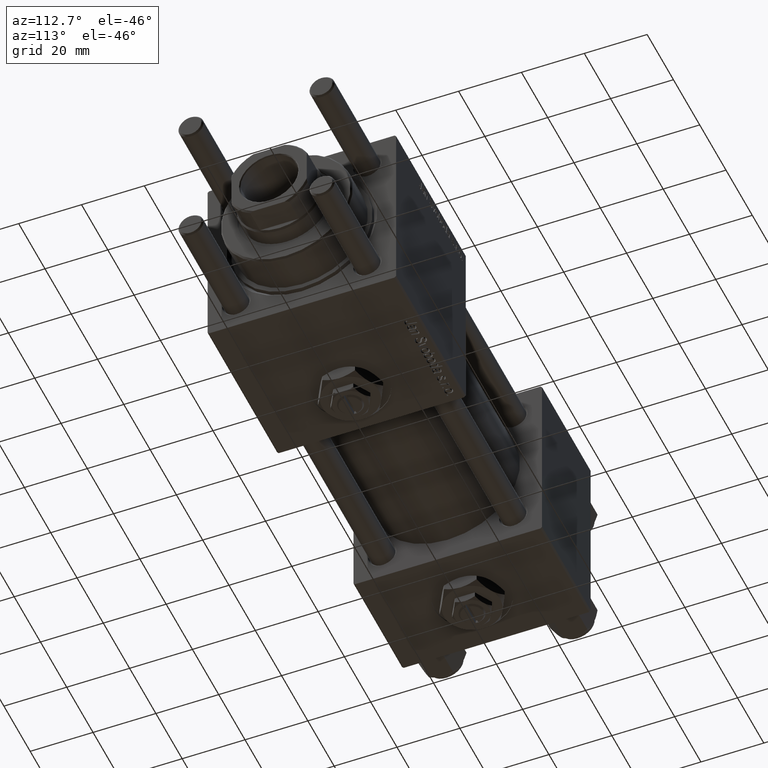
[diagram: clean part render]
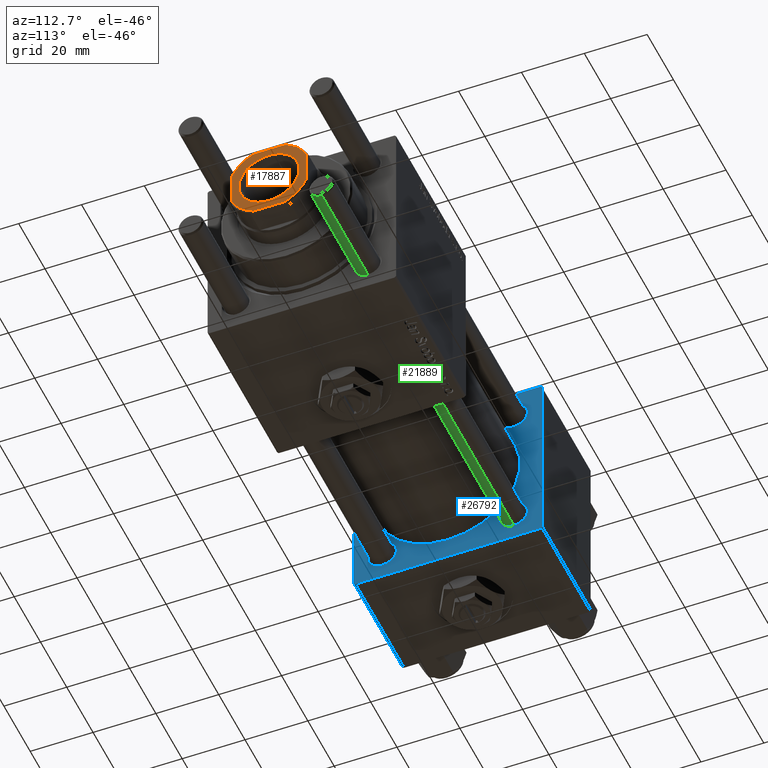
[diagram: same view with three faces highlighted in distinct colors, each labeled with its STEP entity id]
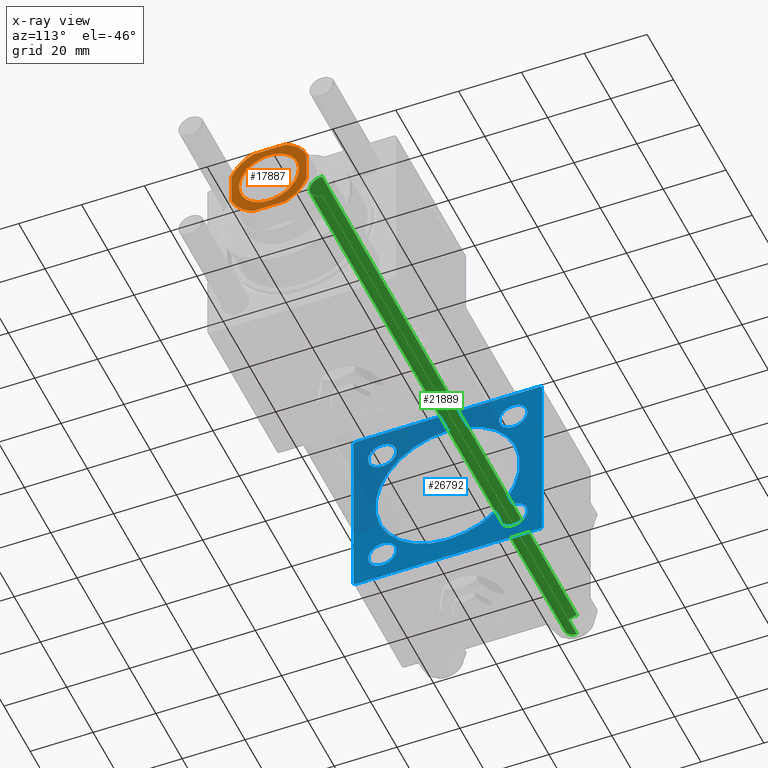
[diagram: x-ray of the same camera — body ghosted, the three highlighted faces saturated]
A machine part, auxiliary view with three faces highlighted in distinct colors.
The next image is the same camera in x-ray (body ghosted, the three faces saturated) — at least one of them is partly hidden behind the body in this view.
Their STEP definitions:

[orange] entity #17887 — the highlighted planar face has unit normal (1, 0, 0).
#131 = CIRCLE ( 'NONE', #32453, 13.00000000000002309 ) ;
#304 = CIRCLE ( 'NONE', #43097, 9.549999999999975842 ) ;
#541 = VECTOR ( 'NONE', #18615, 1000.000000000000000 ) ;
#2282 = DIRECTION ( 'NONE',  ( -2.891205793294678326E-16, 1.000000000000000000, -0.000000000000000000 ) ) ;
#2438 = DIRECTION ( 'NONE',  ( 7.228014483236695816E-17, -1.000000000000000000, 0.000000000000000000 ) ) ;
#2636 = AXIS2_PLACEMENT_3D ( 'NONE', #49928, #53500, #12689 ) ;
#4100 = CARTESIAN_POINT ( 'NONE',  ( -9.549999999999975842, 1.169537693185719205E-15, 136.0000000000000000 ) ) ;
#5224 = CARTESIAN_POINT ( 'NONE',  ( -12.00000000000000000, 11.99999999999999645, 136.0000000000000000 ) ) ;
#5233 = EDGE_CURVE ( 'NONE', #21608, #52743, #57222, .T. ) ;
#5897 = CARTESIAN_POINT ( 'NONE',  ( 5.000000000000042633, 11.99999999999999645, 136.0000000000000000 ) ) ;
#6387 = CARTESIAN_POINT ( 'NONE',  ( -4.999999999999987566, 11.99999999999999645, 136.0000000000000000 ) ) ;
#6406 = VERTEX_POINT ( 'NONE', #5897 ) ;
#7097 = DIRECTION ( 'NONE',  ( 1.000000000000000000, 0.000000000000000000, 0.000000000000000000 ) ) ;
#7121 = PLANE ( 'NONE',  #28450 ) ;
#7127 = DIRECTION ( 'NONE',  ( 1.000000000000000000, 0.000000000000000000, 0.000000000000000000 ) ) ;
#7192 = CARTESIAN_POINT ( 'NONE',  ( 0.000000000000000000, 0.000000000000000000, 136.0000000000000000 ) ) ;
#9504 = ORIENTED_EDGE ( 'NONE', *, *, #34275, .T. ) ;
#10189 = CIRCLE ( 'NONE', #58687, 12.99999999999999289 ) ;
#10900 = CARTESIAN_POINT ( 'NONE',  ( 11.99999999999999645, 11.99999999999999645, 136.0000000000000000 ) ) ;
#11204 = EDGE_CURVE ( 'NONE', #52678, #41967, #45932, .T. ) ;
#11489 = CARTESIAN_POINT ( 'NONE',  ( -12.00000000000000000, -5.000000000000039968, 136.0000000000000000 ) ) ;
#11557 = DIRECTION ( 'NONE',  ( -0.000000000000000000, 0.000000000000000000, 1.000000000000000000 ) ) ;
#11872 = DIRECTION ( 'NONE',  ( -0.000000000000000000, 0.000000000000000000, 1.000000000000000000 ) ) ;
#12689 = DIRECTION ( 'NONE',  ( 1.000000000000000000, 0.000000000000000000, 0.000000000000000000 ) ) ;
#14632 = CARTESIAN_POINT ( 'NONE',  ( -11.99999999999999822, -12.00000000000000355, 136.0000000000000000 ) ) ;
#15561 = ORIENTED_EDGE ( 'NONE', *, *, #55832, .T. ) ;
#16313 = CARTESIAN_POINT ( 'NONE',  ( 0.000000000000000000, 0.000000000000000000, 136.0000000000000000 ) ) ;
#16401 = DIRECTION ( 'NONE',  ( -0.000000000000000000, 0.000000000000000000, 1.000000000000000000 ) ) ;
#17273 = ORIENTED_EDGE ( 'NONE', *, *, #54525, .T. ) ;
#17887 = ADVANCED_FACE ( 'NONE', ( #29742, #47932 ), #7121, .T. ) ;
#18615 = DIRECTION ( 'NONE',  ( -1.000000000000000000, -0.000000000000000000, -0.000000000000000000 ) ) ;
#19973 = VECTOR ( 'NONE', #2282, 1000.000000000000000 ) ;
#20020 = DIRECTION ( 'NONE',  ( 1.000000000000000000, 0.000000000000000000, 0.000000000000000000 ) ) ;
#20021 = ORIENTED_EDGE ( 'NONE', *, *, #23658, .T. ) ;
#20297 = CARTESIAN_POINT ( 'NONE',  ( -12.00000000000000000, 11.99999999999999645, 136.0000000000000000 ) ) ;
#21608 = VERTEX_POINT ( 'NONE', #54338 ) ;
#22316 = CARTESIAN_POINT ( 'NONE',  ( 0.000000000000000000, 0.000000000000000000, 136.0000000000000000 ) ) ;
#22503 = VERTEX_POINT ( 'NONE', #42859 ) ;
#23658 = EDGE_CURVE ( 'NONE', #22503, #52157, #28294, .T. ) ;
#24013 = EDGE_LOOP ( 'NONE', ( #20021, #50150 ) ) ;
#24393 = DIRECTION ( 'NONE',  ( 1.000000000000000000, 0.000000000000000000, 0.000000000000000000 ) ) ;
#24904 = CARTESIAN_POINT ( 'NONE',  ( -5.000000000000031086, -12.00000000000000355, 136.0000000000000000 ) ) ;
#25277 = CARTESIAN_POINT ( 'NONE',  ( 0.000000000000000000, 0.000000000000000000, 136.0000000000000000 ) ) ;
#26101 = DIRECTION ( 'NONE',  ( 1.000000000000000000, 0.000000000000000000, 0.000000000000000000 ) ) ;
#26693 = DIRECTION ( 'NONE',  ( 0.000000000000000000, -0.000000000000000000, -1.000000000000000000 ) ) ;
#27720 = VERTEX_POINT ( 'NONE', #49414 ) ;
#28294 = CIRCLE ( 'NONE', #2636, 9.549999999999975842 ) ;
#28450 = AXIS2_PLACEMENT_3D ( 'NONE', #25277, #11872, #43458 ) ;
#29048 = CIRCLE ( 'NONE', #31887, 13.00000000000001243 ) ;
#29742 = FACE_BOUND ( 'NONE', #24013, .T. ) ;
#29856 = EDGE_CURVE ( 'NONE', #33203, #27720, #54122, .T. ) ;
#31887 = AXIS2_PLACEMENT_3D ( 'NONE', #16313, #11557, #7097 ) ;
#32311 = LINE ( 'NONE', #5224, #541 ) ;
#32453 = AXIS2_PLACEMENT_3D ( 'NONE', #7192, #16401, #20020 ) ;
#32675 = ORIENTED_EDGE ( 'NONE', *, *, #5233, .T. ) ;
#32791 = DIRECTION ( 'NONE',  ( 1.000000000000000000, 0.000000000000000000, 0.000000000000000000 ) ) ;
#33043 = ORIENTED_EDGE ( 'NONE', *, *, #57268, .T. ) ;
#33203 = VERTEX_POINT ( 'NONE', #56403 ) ;
#34147 = ORIENTED_EDGE ( 'NONE', *, *, #29856, .T. ) ;
#34275 = EDGE_CURVE ( 'NONE', #41967, #33203, #131, .T. ) ;
#34682 = CIRCLE ( 'NONE', #38522, 13.00000000000001421 ) ;
#36791 = VECTOR ( 'NONE', #32791, 1000.000000000000000 ) ;
#38522 = AXIS2_PLACEMENT_3D ( 'NONE', #22316, #41993, #24393 ) ;
#41967 = VERTEX_POINT ( 'NONE', #46032 ) ;
#41993 = DIRECTION ( 'NONE',  ( -0.000000000000000000, 0.000000000000000000, 1.000000000000000000 ) ) ;
#42859 = CARTESIAN_POINT ( 'NONE',  ( 9.549999999999975842, 0.000000000000000000, 136.0000000000000000 ) ) ;
#43097 = AXIS2_PLACEMENT_3D ( 'NONE', #49942, #26693, #26101 ) ;
#43458 = DIRECTION ( 'NONE',  ( 1.000000000000000000, 0.000000000000000000, 0.000000000000000000 ) ) ;
#43952 = EDGE_CURVE ( 'NONE', #52157, #22503, #304, .T. ) ;
#44044 = CARTESIAN_POINT ( 'NONE',  ( 0.000000000000000000, 0.000000000000000000, 136.0000000000000000 ) ) ;
#45379 = ORIENTED_EDGE ( 'NONE', *, *, #11204, .T. ) ;
#45932 = LINE ( 'NONE', #14632, #36791 ) ;
#46032 = CARTESIAN_POINT ( 'NONE',  ( 5.000000000000053291, -12.00000000000000355, 136.0000000000000000 ) ) ;
#46378 = EDGE_LOOP ( 'NONE', ( #34147, #55102, #15561, #33043, #32675, #17273, #45379, #9504 ) ) ;
#47097 = VERTEX_POINT ( 'NONE', #6387 ) ;
#47651 = DIRECTION ( 'NONE',  ( -0.000000000000000000, 0.000000000000000000, 1.000000000000000000 ) ) ;
#47932 = FACE_OUTER_BOUND ( 'NONE', #46378, .T. ) ;
#49414 = CARTESIAN_POINT ( 'NONE',  ( 11.99999999999999822, 5.000000000000037303, 136.0000000000000000 ) ) ;
#49928 = CARTESIAN_POINT ( 'NONE',  ( 0.000000000000000000, 0.000000000000000000, 136.0000000000000000 ) ) ;
#49942 = CARTESIAN_POINT ( 'NONE',  ( 0.000000000000000000, 0.000000000000000000, 136.0000000000000000 ) ) ;
#50150 = ORIENTED_EDGE ( 'NONE', *, *, #43952, .T. ) ;
#50268 = EDGE_CURVE ( 'NONE', #27720, #6406, #29048, .T. ) ;
#51988 = VECTOR ( 'NONE', #2438, 1000.000000000000000 ) ;
#52157 = VERTEX_POINT ( 'NONE', #4100 ) ;
#52678 = VERTEX_POINT ( 'NONE', #24904 ) ;
#52743 = VERTEX_POINT ( 'NONE', #11489 ) ;
#53500 = DIRECTION ( 'NONE',  ( 0.000000000000000000, -0.000000000000000000, -1.000000000000000000 ) ) ;
#54122 = LINE ( 'NONE', #10900, #19973 ) ;
#54338 = CARTESIAN_POINT ( 'NONE',  ( -12.00000000000000000, 4.999999999999979572, 136.0000000000000000 ) ) ;
#54525 = EDGE_CURVE ( 'NONE', #52743, #52678, #34682, .T. ) ;
#55102 = ORIENTED_EDGE ( 'NONE', *, *, #50268, .T. ) ;
#55832 = EDGE_CURVE ( 'NONE', #6406, #47097, #32311, .T. ) ;
#56403 = CARTESIAN_POINT ( 'NONE',  ( 12.00000000000000178, -5.000000000000056843, 136.0000000000000000 ) ) ;
#57222 = LINE ( 'NONE', #20297, #51988 ) ;
#57268 = EDGE_CURVE ( 'NONE', #47097, #21608, #10189, .T. ) ;
#58687 = AXIS2_PLACEMENT_3D ( 'NONE', #44044, #47651, #7127 ) ;

[blue] entity #26792 — the highlighted planar face has unit normal (-1, 0, 0).
#222 = ORIENTED_EDGE ( 'NONE', *, *, #44537, .F. ) ;
#408 = EDGE_CURVE ( 'NONE', #28565, #27055, #43979, .T. ) ;
#692 = CARTESIAN_POINT ( 'NONE',  ( 37.00000000000000000, 20.84999999999999787, -25.34999999999999076 ) ) ;
#858 = EDGE_CURVE ( 'NONE', #12422, #48890, #43309, .T. ) ;
#973 = VERTEX_POINT ( 'NONE', #40305 ) ;
#1001 = EDGE_CURVE ( 'NONE', #14592, #43388, #13794, .T. ) ;
#1235 = ORIENTED_EDGE ( 'NONE', *, *, #33854, .T. ) ;
#1275 = DIRECTION ( 'NONE',  ( 0.000000000000000000, 0.000000000000000000, 1.000000000000000000 ) ) ;
#1366 = ORIENTED_EDGE ( 'NONE', *, *, #1001, .F. ) ;
#1434 = CARTESIAN_POINT ( 'NONE',  ( 37.00000000000000000, 20.84999999999999787, 16.35000000000001208 ) ) ;
#1598 = DIRECTION ( 'NONE',  ( 1.000000000000000000, -0.000000000000000000, 0.000000000000000000 ) ) ;
#1777 = CARTESIAN_POINT ( 'NONE',  ( 37.00000000000000000, -20.84999999999999076, -25.34999999999999432 ) ) ;
#2000 = DIRECTION ( 'NONE',  ( 0.000000000000000000, -1.000000000000000000, -1.156482317317871725E-16 ) ) ;
#2104 = ORIENTED_EDGE ( 'NONE', *, *, #408, .T. ) ;
#2295 = DIRECTION ( 'NONE',  ( -1.000000000000000000, 0.000000000000000000, -0.000000000000000000 ) ) ;
#4001 = CARTESIAN_POINT ( 'NONE',  ( 37.00000000000000000, 20.84999999999999787, 20.85000000000000142 ) ) ;
#4348 = AXIS2_PLACEMENT_3D ( 'NONE', #32735, #13999, #50932 ) ;
#4420 = LINE ( 'NONE', #17197, #52098 ) ;
#4422 = EDGE_LOOP ( 'NONE', ( #1235, #7569 ) ) ;
#4511 = CARTESIAN_POINT ( 'NONE',  ( 37.00000000000000000, 2.146024240737012665E-16, -23.00000000000000000 ) ) ;
#4545 = EDGE_CURVE ( 'NONE', #43393, #50440, #27014, .T. ) ;
#5265 = AXIS2_PLACEMENT_3D ( 'NONE', #34656, #12031, #40014 ) ;
#6191 = CARTESIAN_POINT ( 'NONE',  ( 37.00000000000000000, -2.602085213965210642E-15, 23.00000000000000000 ) ) ;
#6259 = FACE_BOUND ( 'NONE', #12029, .T. ) ;
#6912 = ORIENTED_EDGE ( 'NONE', *, *, #54432, .T. ) ;
#7422 = DIRECTION ( 'NONE',  ( -0.000000000000000000, 0.000000000000000000, 1.000000000000000000 ) ) ;
#7569 = ORIENTED_EDGE ( 'NONE', *, *, #21677, .T. ) ;
#8162 = VECTOR ( 'NONE', #35648, 1000.000000000000114 ) ;
#8213 = DIRECTION ( 'NONE',  ( -0.000000000000000000, 0.7071067811865574537, 0.7071067811865376918 ) ) ;
#8314 = CARTESIAN_POINT ( 'NONE',  ( 37.00000000000000000, 29.99999999999999289, 30.00000000000000000 ) ) ;
#8618 = LINE ( 'NONE', #8314, #18336 ) ;
#8629 = DIRECTION ( 'NONE',  ( -0.000000000000000000, -0.7071067811865474617, -0.7071067811865474617 ) ) ;
#9099 = ORIENTED_EDGE ( 'NONE', *, *, #44603, .T. ) ;
#11349 = ORIENTED_EDGE ( 'NONE', *, *, #858, .T. ) ;
#11374 = ORIENTED_EDGE ( 'NONE', *, *, #4545, .T. ) ;
#11978 = DIRECTION ( 'NONE',  ( 0.000000000000000000, 0.000000000000000000, 1.000000000000000000 ) ) ;
#12029 = EDGE_LOOP ( 'NONE', ( #1366, #38230 ) ) ;
#12031 = DIRECTION ( 'NONE',  ( -1.000000000000000000, 0.000000000000000000, -0.000000000000000000 ) ) ;
#12422 = VERTEX_POINT ( 'NONE', #692 ) ;
#12795 = VECTOR ( 'NONE', #8213, 999.9999999999998863 ) ;
#13509 = EDGE_LOOP ( 'NONE', ( #9099, #31145 ) ) ;
#13693 = EDGE_CURVE ( 'NONE', #28565, #50716, #4420, .T. ) ;
#13724 = CARTESIAN_POINT ( 'NONE',  ( 37.00000000000000000, -20.84999999999999076, -16.35000000000001208 ) ) ;
#13794 = CIRCLE ( 'NONE', #29938, 23.00000000000000000 ) ;
#13999 = DIRECTION ( 'NONE',  ( -1.000000000000000000, 0.000000000000000000, -0.000000000000000000 ) ) ;
#14592 = VERTEX_POINT ( 'NONE', #6191 ) ;
#14598 = FACE_BOUND ( 'NONE', #13509, .T. ) ;
#14835 = EDGE_CURVE ( 'NONE', #21248, #50716, #22799, .T. ) ;
#14879 = DIRECTION ( 'NONE',  ( 0.000000000000000000, 0.000000000000000000, 1.000000000000000000 ) ) ;
#14971 = DIRECTION ( 'NONE',  ( 0.000000000000000000, 0.000000000000000000, 1.000000000000000000 ) ) ;
#15029 = VERTEX_POINT ( 'NONE', #25803 ) ;
#15971 = EDGE_LOOP ( 'NONE', ( #11349, #6912 ) ) ;
#16597 = CARTESIAN_POINT ( 'NONE',  ( 37.00000000000000000, -20.84999999999999076, 20.85000000000000497 ) ) ;
#16778 = EDGE_LOOP ( 'NONE', ( #44121, #36495 ) ) ;
#16888 = DIRECTION ( 'NONE',  ( 0.000000000000000000, 0.000000000000000000, 1.000000000000000000 ) ) ;
#17197 = CARTESIAN_POINT ( 'NONE',  ( 37.00000000000000000, 29.99999999999999289, -30.00000000000000000 ) ) ;
#17208 = CIRCLE ( 'NONE', #43853, 4.499999999999990230 ) ;
#17229 = CARTESIAN_POINT ( 'NONE',  ( 37.00000000000000000, -20.84999999999999076, 16.35000000000001208 ) ) ;
#17442 = CARTESIAN_POINT ( 'NONE',  ( 37.00000000000000000, -30.00000000000000000, 29.49999999999999289 ) ) ;
#18336 = VECTOR ( 'NONE', #54784, 1000.000000000000000 ) ;
#18339 = DIRECTION ( 'NONE',  ( 0.000000000000000000, 0.7071067811865474617, -0.7071067811865474617 ) ) ;
#18435 = CARTESIAN_POINT ( 'NONE',  ( 37.00000000000000000, 29.49999999999997868, -30.00000000000000000 ) ) ;
#19800 = VERTEX_POINT ( 'NONE', #17229 ) ;
#20429 = CARTESIAN_POINT ( 'NONE',  ( 37.00000000000000000, 29.99999999999999289, 30.00000000000000000 ) ) ;
#20939 = EDGE_CURVE ( 'NONE', #48816, #973, #42795, .T. ) ;
#21248 = VERTEX_POINT ( 'NONE', #38140 ) ;
#21597 = VERTEX_POINT ( 'NONE', #31987 ) ;
#21677 = EDGE_CURVE ( 'NONE', #21597, #19800, #35186, .T. ) ;
#22242 = EDGE_CURVE ( 'NONE', #36181, #21248, #35127, .T. ) ;
#22253 = DIRECTION ( 'NONE',  ( 0.000000000000000000, -1.000000000000000000, -1.156482317317871725E-16 ) ) ;
#22337 = AXIS2_PLACEMENT_3D ( 'NONE', #23885, #42069, #1275 ) ;
#22799 = LINE ( 'NONE', #30838, #41693 ) ;
#23816 = DIRECTION ( 'NONE',  ( 1.000000000000000000, -0.000000000000000000, 0.000000000000000000 ) ) ;
#23885 = CARTESIAN_POINT ( 'NONE',  ( 37.00000000000000000, 20.84999999999999787, -20.85000000000000142 ) ) ;
#24196 = CARTESIAN_POINT ( 'NONE',  ( 37.00000000000000000, -2.602085213965210642E-15, 0.000000000000000000 ) ) ;
#24348 = CARTESIAN_POINT ( 'NONE',  ( 37.00000000000000000, 29.99999999999999289, -29.50000000000000000 ) ) ;
#24614 = CARTESIAN_POINT ( 'NONE',  ( 37.00000000000000000, -20.84999999999999076, -20.85000000000000497 ) ) ;
#25803 = CARTESIAN_POINT ( 'NONE',  ( 37.00000000000000000, -29.49999999999998579, 29.99999999999999289 ) ) ;
#25840 = ORIENTED_EDGE ( 'NONE', *, *, #14835, .T. ) ;
#25951 = CARTESIAN_POINT ( 'NONE',  ( 37.00000000000000000, 20.84999999999999787, 20.85000000000000142 ) ) ;
#26218 = VECTOR ( 'NONE', #2000, 1000.000000000000000 ) ;
#26792 = ADVANCED_FACE ( 'NONE', ( #14598, #46775, #32756, #51249, #6259, #35098 ), #48228, .F. ) ;
#26917 = AXIS2_PLACEMENT_3D ( 'NONE', #24614, #2295, #46969 ) ;
#27014 = LINE ( 'NONE', #49376, #8162 ) ;
#27043 = ORIENTED_EDGE ( 'NONE', *, *, #33590, .T. ) ;
#27055 = VERTEX_POINT ( 'NONE', #24348 ) ;
#27976 = CARTESIAN_POINT ( 'NONE',  ( 37.00000000000000000, -30.00000000000000000, 29.49999999999999289 ) ) ;
#28286 = CARTESIAN_POINT ( 'NONE',  ( 37.00000000000000000, -2.602085213965210642E-15, 0.000000000000000000 ) ) ;
#28471 = AXIS2_PLACEMENT_3D ( 'NONE', #4001, #49579, #31684 ) ;
#28565 = VERTEX_POINT ( 'NONE', #18435 ) ;
#29294 = EDGE_CURVE ( 'NONE', #973, #48816, #54145, .T. ) ;
#29938 = AXIS2_PLACEMENT_3D ( 'NONE', #24196, #1598, #14971 ) ;
#30023 = ORIENTED_EDGE ( 'NONE', *, *, #22242, .T. ) ;
#30045 = CARTESIAN_POINT ( 'NONE',  ( 37.00000000000000000, 0.000000000000000000, 0.000000000000000000 ) ) ;
#30139 = DIRECTION ( 'NONE',  ( -1.000000000000000000, 0.000000000000000000, -0.000000000000000000 ) ) ;
#30838 = CARTESIAN_POINT ( 'NONE',  ( 37.00000000000000000, -29.50000000000001066, -30.00000000000000711 ) ) ;
#31145 = ORIENTED_EDGE ( 'NONE', *, *, #51966, .T. ) ;
#31684 = DIRECTION ( 'NONE',  ( 0.000000000000000000, 0.000000000000000000, 1.000000000000000000 ) ) ;
#31894 = CARTESIAN_POINT ( 'NONE',  ( 37.00000000000000000, 29.99999999999999289, 29.50000000000000000 ) ) ;
#31987 = CARTESIAN_POINT ( 'NONE',  ( 37.00000000000000000, -20.84999999999999076, 25.34999999999999432 ) ) ;
#32316 = AXIS2_PLACEMENT_3D ( 'NONE', #25951, #36076, #44418 ) ;
#32735 = CARTESIAN_POINT ( 'NONE',  ( 37.00000000000000000, -20.84999999999999076, -20.85000000000000497 ) ) ;
#32756 = FACE_BOUND ( 'NONE', #4422, .T. ) ;
#33590 = EDGE_CURVE ( 'NONE', #15029, #36181, #49741, .T. ) ;
#33854 = EDGE_CURVE ( 'NONE', #19800, #21597, #17208, .T. ) ;
#34327 = CARTESIAN_POINT ( 'NONE',  ( 37.00000000000000000, -20.84999999999999076, 20.85000000000000497 ) ) ;
#34656 = CARTESIAN_POINT ( 'NONE',  ( 37.00000000000000000, 20.84999999999999787, -20.85000000000000142 ) ) ;
#35098 = FACE_OUTER_BOUND ( 'NONE', #56119, .T. ) ;
#35127 = LINE ( 'NONE', #49739, #50588 ) ;
#35186 = CIRCLE ( 'NONE', #41907, 4.499999999999990230 ) ;
#35316 = CARTESIAN_POINT ( 'NONE',  ( 37.00000000000000000, 29.99999999999999289, -29.50000000000000000 ) ) ;
#35648 = DIRECTION ( 'NONE',  ( 0.000000000000000000, -0.7071067811865474617, 0.7071067811865474617 ) ) ;
#36076 = DIRECTION ( 'NONE',  ( -1.000000000000000000, 0.000000000000000000, -0.000000000000000000 ) ) ;
#36181 = VERTEX_POINT ( 'NONE', #17442 ) ;
#36495 = ORIENTED_EDGE ( 'NONE', *, *, #29294, .T. ) ;
#38038 = CARTESIAN_POINT ( 'NONE',  ( 37.00000000000000000, 20.84999999999999787, -16.35000000000001208 ) ) ;
#38140 = CARTESIAN_POINT ( 'NONE',  ( 37.00000000000000000, -30.00000000000000000, -29.50000000000001776 ) ) ;
#38230 = ORIENTED_EDGE ( 'NONE', *, *, #38351, .F. ) ;
#38351 = EDGE_CURVE ( 'NONE', #43388, #14592, #42931, .T. ) ;
#38696 = DIRECTION ( 'NONE',  ( -1.000000000000000000, 0.000000000000000000, -0.000000000000000000 ) ) ;
#39461 = CARTESIAN_POINT ( 'NONE',  ( 37.00000000000000000, 29.49999999999999289, 30.00000000000000000 ) ) ;
#39579 = VERTEX_POINT ( 'NONE', #1777 ) ;
#40014 = DIRECTION ( 'NONE',  ( 0.000000000000000000, 0.000000000000000000, 1.000000000000000000 ) ) ;
#40305 = CARTESIAN_POINT ( 'NONE',  ( 37.00000000000000000, 20.84999999999999787, 25.34999999999999076 ) ) ;
#41693 = VECTOR ( 'NONE', #18339, 1000.000000000000114 ) ;
#41907 = AXIS2_PLACEMENT_3D ( 'NONE', #34327, #30139, #11978 ) ;
#42069 = DIRECTION ( 'NONE',  ( -1.000000000000000000, 0.000000000000000000, -0.000000000000000000 ) ) ;
#42243 = ORIENTED_EDGE ( 'NONE', *, *, #52705, .T. ) ;
#42678 = VERTEX_POINT ( 'NONE', #13724 ) ;
#42795 = CIRCLE ( 'NONE', #32316, 4.499999999999990230 ) ;
#42931 = CIRCLE ( 'NONE', #50553, 23.00000000000000000 ) ;
#43309 = CIRCLE ( 'NONE', #5265, 4.499999999999990230 ) ;
#43388 = VERTEX_POINT ( 'NONE', #4511 ) ;
#43393 = VERTEX_POINT ( 'NONE', #31894 ) ;
#43853 = AXIS2_PLACEMENT_3D ( 'NONE', #16597, #52955, #16888 ) ;
#43979 = LINE ( 'NONE', #35316, #12795 ) ;
#44121 = ORIENTED_EDGE ( 'NONE', *, *, #20939, .T. ) ;
#44418 = DIRECTION ( 'NONE',  ( 0.000000000000000000, 0.000000000000000000, 1.000000000000000000 ) ) ;
#44537 = EDGE_CURVE ( 'NONE', #43393, #27055, #8618, .T. ) ;
#44603 = EDGE_CURVE ( 'NONE', #39579, #42678, #45947, .T. ) ;
#45947 = CIRCLE ( 'NONE', #26917, 4.499999999999990230 ) ;
#46626 = ORIENTED_EDGE ( 'NONE', *, *, #13693, .F. ) ;
#46775 = FACE_BOUND ( 'NONE', #15971, .T. ) ;
#46969 = DIRECTION ( 'NONE',  ( 0.000000000000000000, 0.000000000000000000, 1.000000000000000000 ) ) ;
#48228 = PLANE ( 'NONE',  #48365 ) ;
#48365 = AXIS2_PLACEMENT_3D ( 'NONE', #30045, #38696, #7422 ) ;
#48816 = VERTEX_POINT ( 'NONE', #1434 ) ;
#48890 = VERTEX_POINT ( 'NONE', #38038 ) ;
#49026 = CIRCLE ( 'NONE', #4348, 4.499999999999990230 ) ;
#49376 = CARTESIAN_POINT ( 'NONE',  ( 37.00000000000000000, 29.49999999999999289, 30.00000000000000000 ) ) ;
#49579 = DIRECTION ( 'NONE',  ( -1.000000000000000000, 0.000000000000000000, -0.000000000000000000 ) ) ;
#49739 = CARTESIAN_POINT ( 'NONE',  ( 37.00000000000000000, -30.00000000000000000, 29.99999999999999289 ) ) ;
#49741 = LINE ( 'NONE', #27976, #50511 ) ;
#50440 = VERTEX_POINT ( 'NONE', #39461 ) ;
#50511 = VECTOR ( 'NONE', #8629, 1000.000000000000114 ) ;
#50553 = AXIS2_PLACEMENT_3D ( 'NONE', #28286, #23816, #14879 ) ;
#50588 = VECTOR ( 'NONE', #57771, 1000.000000000000000 ) ;
#50716 = VERTEX_POINT ( 'NONE', #51367 ) ;
#50932 = DIRECTION ( 'NONE',  ( 0.000000000000000000, 0.000000000000000000, 1.000000000000000000 ) ) ;
#51249 = FACE_BOUND ( 'NONE', #16778, .T. ) ;
#51367 = CARTESIAN_POINT ( 'NONE',  ( 37.00000000000000000, -29.50000000000000000, -30.00000000000000711 ) ) ;
#51966 = EDGE_CURVE ( 'NONE', #42678, #39579, #49026, .T. ) ;
#52098 = VECTOR ( 'NONE', #22253, 1000.000000000000000 ) ;
#52597 = LINE ( 'NONE', #20429, #26218 ) ;
#52705 = EDGE_CURVE ( 'NONE', #50440, #15029, #52597, .T. ) ;
#52955 = DIRECTION ( 'NONE',  ( -1.000000000000000000, 0.000000000000000000, -0.000000000000000000 ) ) ;
#54145 = CIRCLE ( 'NONE', #28471, 4.499999999999990230 ) ;
#54432 = EDGE_CURVE ( 'NONE', #48890, #12422, #58498, .T. ) ;
#54784 = DIRECTION ( 'NONE',  ( 0.000000000000000000, 0.000000000000000000, -1.000000000000000000 ) ) ;
#56119 = EDGE_LOOP ( 'NONE', ( #46626, #2104, #222, #11374, #42243, #27043, #30023, #25840 ) ) ;
#57771 = DIRECTION ( 'NONE',  ( 0.000000000000000000, 0.000000000000000000, -1.000000000000000000 ) ) ;
#58498 = CIRCLE ( 'NONE', #22337, 4.499999999999990230 ) ;

[green] entity #21889 — the highlighted cylindrical surface (edge-blend (fillet) strip) has radius 4 mm, axis along (-1, -0, 0).
#5150 = ORIENTED_EDGE ( 'NONE', *, *, #51970, .T. ) ;
#7346 = CARTESIAN_POINT ( 'NONE',  ( 0.000000000000000000, 0.000000000000000000, 0.5000000000000004441 ) ) ;
#7651 = AXIS2_PLACEMENT_3D ( 'NONE', #40254, #21784, #22668 ) ;
#9821 = DIRECTION ( 'NONE',  ( 0.000000000000000000, 0.000000000000000000, -1.000000000000000000 ) ) ;
#10214 = AXIS2_PLACEMENT_3D ( 'NONE', #7346, #43688, #57380 ) ;
#10257 = VERTEX_POINT ( 'NONE', #23634 ) ;
#10690 = CARTESIAN_POINT ( 'NONE',  ( -4.000000000000000000, 0.000000000000000000, 195.0000000000000000 ) ) ;
#12813 = EDGE_CURVE ( 'NONE', #10257, #45741, #55982, .T. ) ;
#13873 = EDGE_CURVE ( 'NONE', #45741, #18773, #36871, .T. ) ;
#14255 = VERTEX_POINT ( 'NONE', #39281 ) ;
#14467 = DIRECTION ( 'NONE',  ( -0.000000000000000000, -0.000000000000000000, -1.000000000000000000 ) ) ;
#15766 = ORIENTED_EDGE ( 'NONE', *, *, #12813, .T. ) ;
#16899 = ORIENTED_EDGE ( 'NONE', *, *, #13873, .T. ) ;
#18773 = VERTEX_POINT ( 'NONE', #47438 ) ;
#19012 = ORIENTED_EDGE ( 'NONE', *, *, #23721, .F. ) ;
#19577 = CIRCLE ( 'NONE', #24326, 4.000000000000000000 ) ;
#21784 = DIRECTION ( 'NONE',  ( -0.000000000000000000, -0.000000000000000000, -1.000000000000000000 ) ) ;
#21889 = ADVANCED_FACE ( 'NONE', ( #57836 ), #44731, .T. ) ;
#22668 = DIRECTION ( 'NONE',  ( -1.000000000000000000, 0.000000000000000000, 0.000000000000000000 ) ) ;
#23634 = CARTESIAN_POINT ( 'NONE',  ( -4.000000000000000000, 0.000000000000000000, 194.5000000000000568 ) ) ;
#23721 = EDGE_CURVE ( 'NONE', #14255, #18773, #46344, .T. ) ;
#24326 = AXIS2_PLACEMENT_3D ( 'NONE', #55106, #9821, #50648 ) ;
#26241 = EDGE_LOOP ( 'NONE', ( #19012, #5150, #15766, #16899 ) ) ;
#36871 = CIRCLE ( 'NONE', #10214, 4.000000000000000000 ) ;
#37821 = VECTOR ( 'NONE', #14467, 1000.000000000000000 ) ;
#39281 = CARTESIAN_POINT ( 'NONE',  ( 4.000000000000000000, 4.898587196589412829E-16, 194.5000000000000568 ) ) ;
#40254 = CARTESIAN_POINT ( 'NONE',  ( 0.000000000000000000, 0.000000000000000000, 195.0000000000000000 ) ) ;
#43688 = DIRECTION ( 'NONE',  ( -0.000000000000000000, -0.000000000000000000, 1.000000000000000000 ) ) ;
#44731 = CYLINDRICAL_SURFACE ( 'NONE', #7651, 4.000000000000000000 ) ;
#45741 = VERTEX_POINT ( 'NONE', #54895 ) ;
#46344 = LINE ( 'NONE', #54985, #37821 ) ;
#46404 = VECTOR ( 'NONE', #50346, 1000.000000000000000 ) ;
#47438 = CARTESIAN_POINT ( 'NONE',  ( 4.000000000000000000, 4.898587196589412829E-16, 0.5000000000000004441 ) ) ;
#50346 = DIRECTION ( 'NONE',  ( -0.000000000000000000, -0.000000000000000000, -1.000000000000000000 ) ) ;
#50648 = DIRECTION ( 'NONE',  ( 1.000000000000000000, 0.000000000000000000, 0.000000000000000000 ) ) ;
#51970 = EDGE_CURVE ( 'NONE', #14255, #10257, #19577, .T. ) ;
#54895 = CARTESIAN_POINT ( 'NONE',  ( -4.000000000000000000, 0.000000000000000000, 0.5000000000000004441 ) ) ;
#54985 = CARTESIAN_POINT ( 'NONE',  ( 4.000000000000000000, 4.898587196589412829E-16, 195.0000000000000000 ) ) ;
#55106 = CARTESIAN_POINT ( 'NONE',  ( 0.000000000000000000, 0.000000000000000000, 194.5000000000000568 ) ) ;
#55982 = LINE ( 'NONE', #10690, #46404 ) ;
#57380 = DIRECTION ( 'NONE',  ( 1.000000000000000000, 0.000000000000000000, 0.000000000000000000 ) ) ;
#57836 = FACE_OUTER_BOUND ( 'NONE', #26241, .T. ) ;